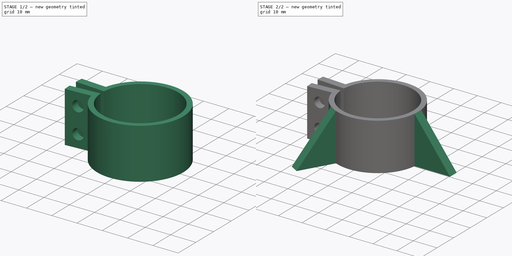
[diagram: build sequence overview — one tinted view per stage of 2, left to right]
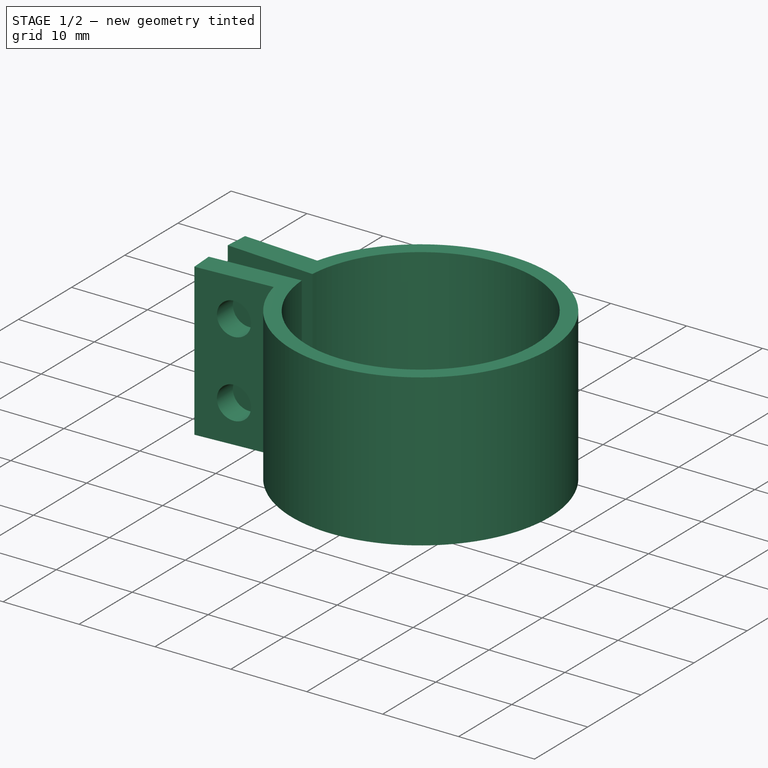
[diagram: stage 1 of 2 — iso view after this stage's code; geometry added in this stage tinted green]
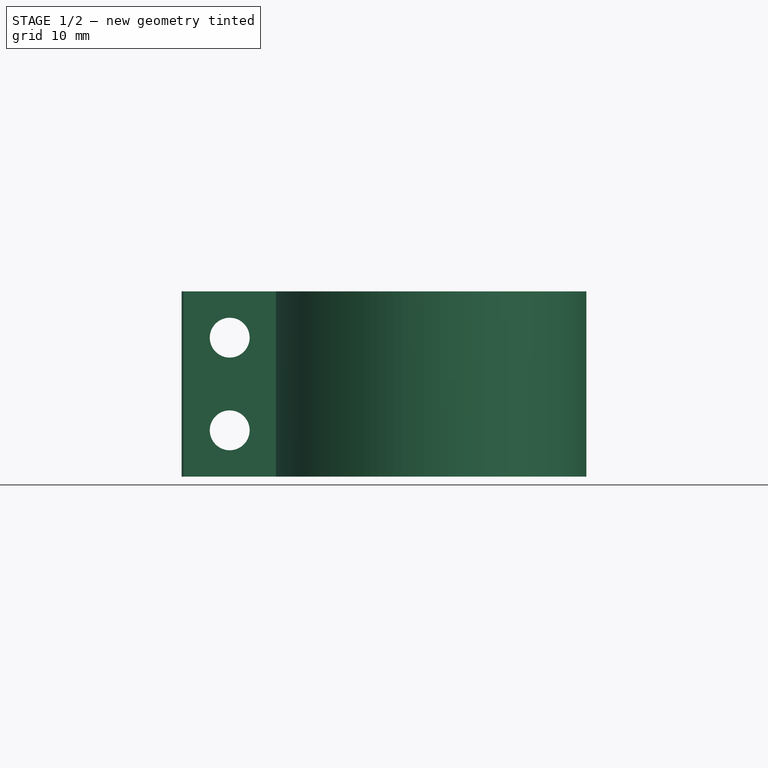
[diagram: stage 1 of 2 — front view after this stage's code; geometry added in this stage tinted green]
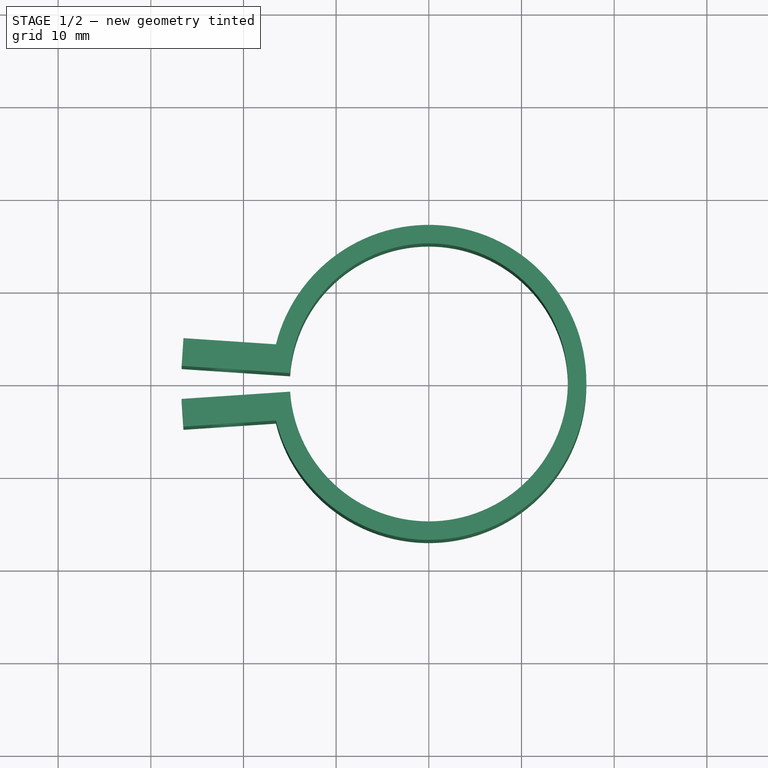
[diagram: stage 1 of 2 — top view after this stage's code; geometry added in this stage tinted green]
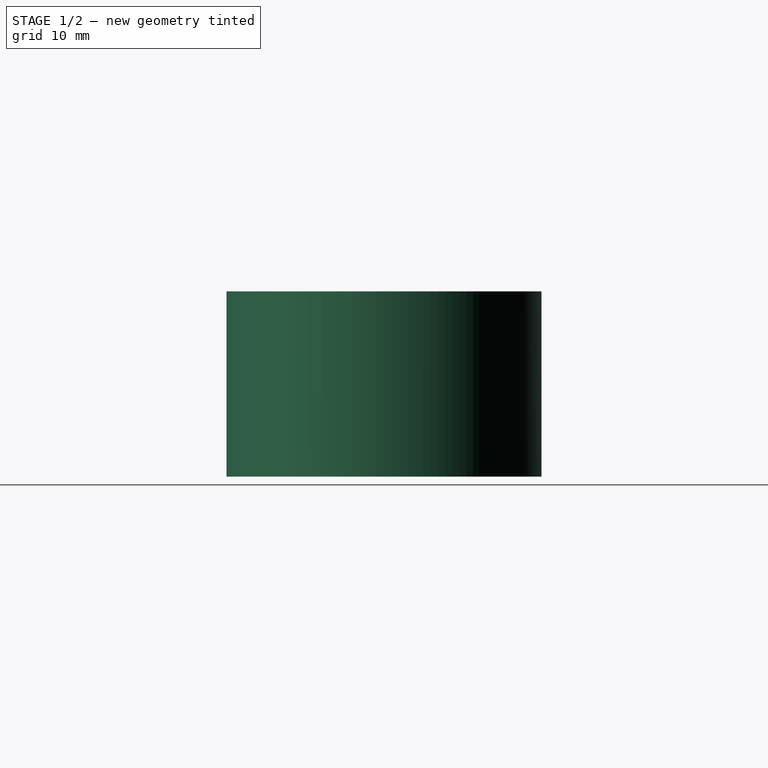
[diagram: stage 1 of 2 — right view after this stage's code; geometry added in this stage tinted green]
FCSTD DOCUMENT  (FreeCAD 0.22R38127 (Git))
Label: collar-lower
License: All rights reserved
LicenseURL: http://en.wikipedia.org/wiki/All_rights_reserved
objects: Sketcher::SketchObject×3, PartDesign::Pad×2, PartDesign::Pocket×1, PartDesign::PolarPattern×1, PartDesign::Body×1
note: 11 computed .brp shape members not serialized (recipe doc carries the construction recipe); baked Part::Feature solids carry a one-line shape summary decoded from their .brp

FEATURE [Sketcher::SketchObject] Sketch
  AttachmentSupport = -> [XY_Plane]
  FullyConstrained = true
  MapMode = 5
  sketch-geometry (8):
    g0: ArcOfCircle CenterX=0 CenterY=0 CenterZ=0 NormalX=0 NormalY=0 NormalZ=1 AngleXU=0 Radius=15 StartAngle=3.20831 EndAngle=9.35806
    g1: LineSegment StartX=-14.9666 StartY=1 StartZ=0 EndX=-26.6737 EndY=1.78221 EndZ=0
    g2: LineSegment StartX=-26.6737 StartY=1.78221 StartZ=0 EndX=-26.4737 EndY=4.77554 EndZ=0
    g3: LineSegment StartX=-26.4737 StartY=4.77554 StartZ=0 EndX=-16.496 EndY=4.10887 EndZ=0
    g4: LineSegment StartX=-14.9666 StartY=-1 StartZ=0 EndX=-26.6737 EndY=-1.78221 EndZ=0
    g5: LineSegment StartX=-26.6737 StartY=-1.78221 StartZ=0 EndX=-26.4737 EndY=-4.77554 EndZ=0
    g6: LineSegment StartX=-26.4737 StartY=-4.77554 StartZ=0 EndX=-16.496 EndY=-4.10887 EndZ=0
    g7: ArcOfCircle CenterX=0 CenterY=0 CenterZ=0 NormalX=0 NormalY=0 NormalZ=1 AngleXU=0 Radius=17 StartAngle=3.38571 EndAngle=9.18066
  constraints (23):
    c: Coincident(g0,g-1)
    c: Diameter(g0) = 30
    c: Coincident(g0,g1)
    c: Coincident(g1,g2)
    c: Coincident(g2,g3)
    c: Coincident(g0,g4)
    c: Coincident(g4,g5)
    c: Coincident(g5,g6)
    c: Coincident(g7,g0)
    c: Coincident(g7,g3)
    c: Coincident(g7,g6)
    c: Symmetric(g4,g1,g-1)
    c: Perpendicular(g0,g1)
    c: Perpendicular(g0,g4)
    c: Perpendicular(g5,g4)
    c: Perpendicular(g6,g5)
    c: Perpendicular(g2,g1)
    c: Perpendicular(g3,g2)
    c: Equal(g5,g2)
    c: Distance(g2,g2) = 3
    c: Diameter(g7) = 34
    c: DistanceY(g0,g0) = 2
    c: Distance(g3,g3) = 10
FEATURE [PartDesign::Pad] Pad
  Direction = (0,0,1)
  Length = 20
  Length2 = 10
  Profile = -> Sketch
  ReferenceAxis = -> Sketch [N_Axis]
  Refine = true
  Suppressed = false
  Type = 0
FEATURE [Sketcher::SketchObject] Sketch001
  AttachmentSupport = -> [XZ_Plane]
  ExternalGeometry = -> [Pad]
  FullyConstrained = true
  MapMode = 5
  Placement = pos=(0,0,0) rot=(1,0,0;1.5708rad)
  sketch-geometry (3):
    g0: Circle CenterX=-21.4849 CenterY=15 CenterZ=0 NormalX=0 NormalY=0 NormalZ=1 AngleXU=0 Radius=2.15
    g1: Circle CenterX=-21.4849 CenterY=5 CenterZ=0 NormalX=0 NormalY=0 NormalZ=1 AngleXU=0 Radius=2.15
    g2: LineSegment StartX=-21.4849 StartY=20 StartZ=0 EndX=-21.4849 EndY=0 EndZ=0
  constraints (9):
    c: Vertical(g2)
    c: Symmetric(g-3,g-4,g2)
    c: PointOnObject(g1,g2)
    c: PointOnObject(g0,g2)
    c: DistanceY(g0,g-4) = 5
    c: DistanceY(g-5,g1) = 5
    c: Diameter(g1) = 4.3
    c: Diameter(g0) = 4.3
    c: PointOnObject(g2,g-1)
FEATURE [PartDesign::Pocket] Pocket
  BaseFeature = -> Pad
  Direction = (0,1,-2e-16)
  Length = 5
  Length2 = 5
  Midplane = true
  Profile = -> Sketch001
  ReferenceAxis = -> Sketch001 [N_Axis]
  Refine = true
  Suppressed = false
  Type = 1
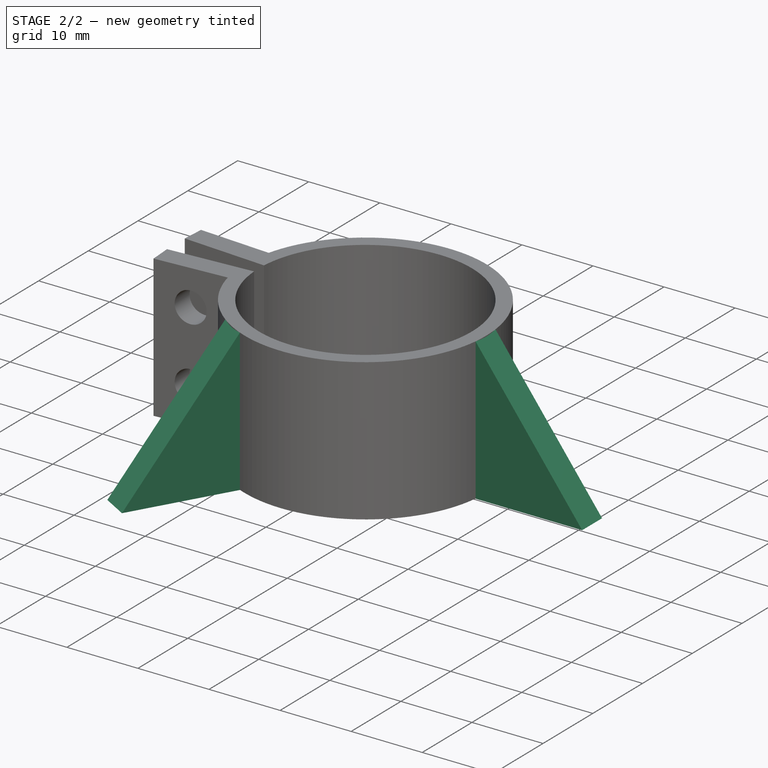
[diagram: stage 2 of 2 — iso view after this stage's code; geometry added in this stage tinted green]
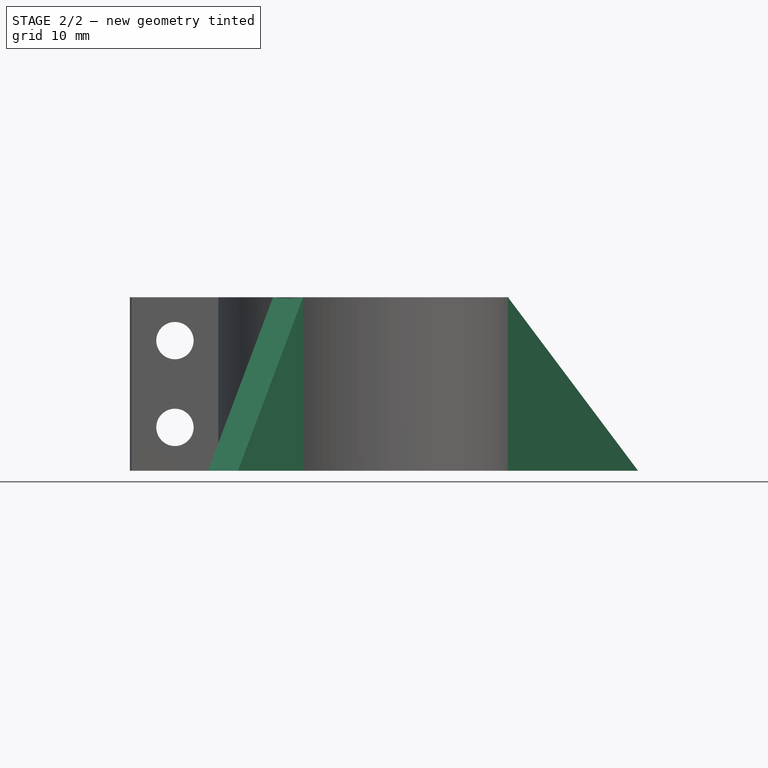
[diagram: stage 2 of 2 — front view after this stage's code; geometry added in this stage tinted green]
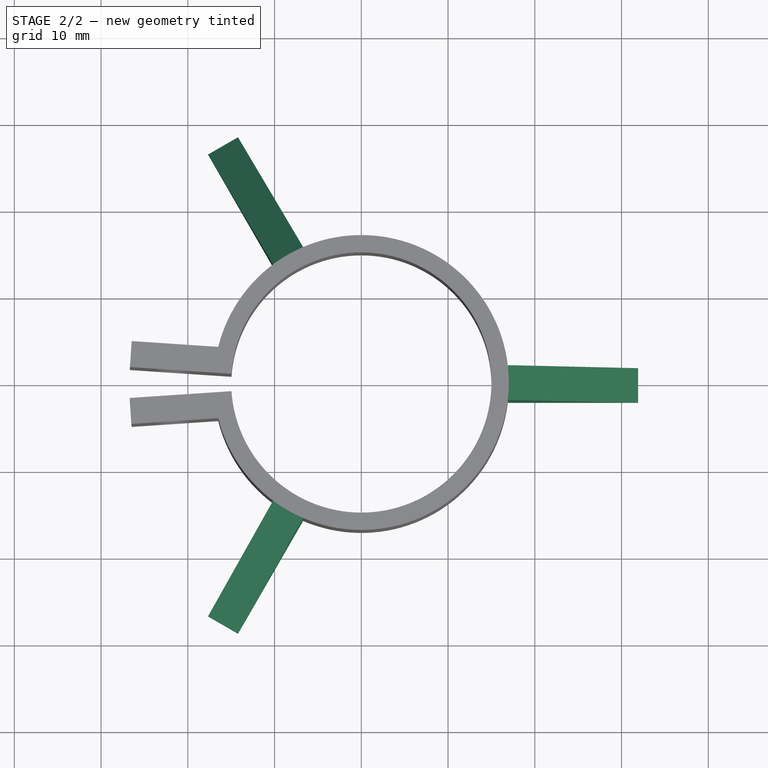
[diagram: stage 2 of 2 — top view after this stage's code; geometry added in this stage tinted green]
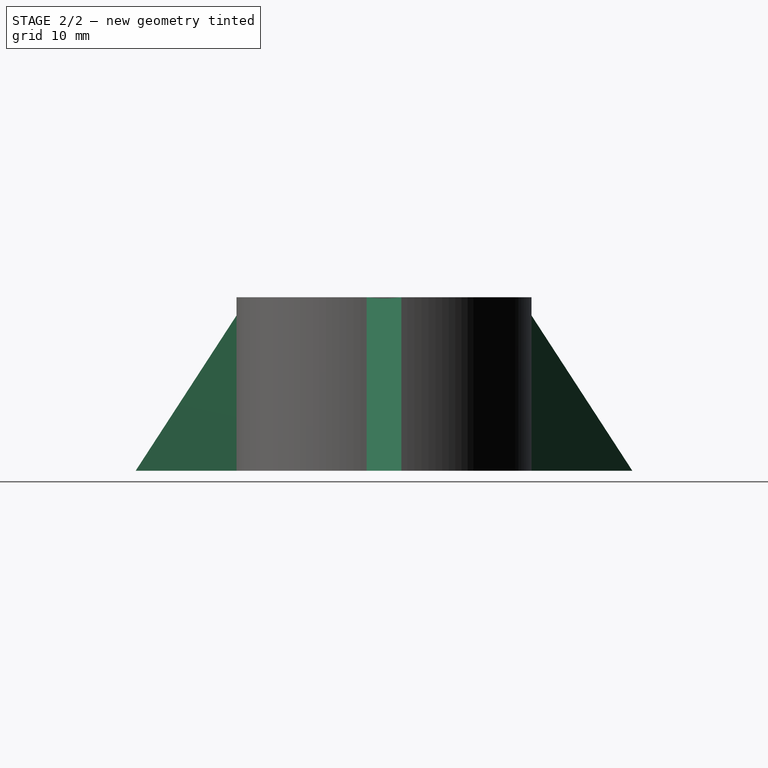
[diagram: stage 2 of 2 — right view after this stage's code; geometry added in this stage tinted green]
FEATURE [Sketcher::SketchObject] Sketch002
  AttachmentSupport = -> [XZ_Plane]
  FullyConstrained = true
  MapMode = 5
  Placement = pos=(0,0,0) rot=(1,0,0;1.5708rad)
  sketch-geometry (3):
    g0: LineSegment StartX=16.9 StartY=20 StartZ=0 EndX=16.9 EndY=0 EndZ=0
    g1: LineSegment StartX=16.9 StartY=0 StartZ=0 EndX=31.9 EndY=0 EndZ=0
    g2: LineSegment StartX=31.9 StartY=0 StartZ=0 EndX=16.9 EndY=20 EndZ=0
  constraints (9):
    c: PointOnObject(g0,g-1)
    c: Vertical(g0)
    c: Coincident(g0,g1)
    c: PointOnObject(g1,g-1)
    c: Coincident(g1,g2)
    c: Coincident(g2,g0)
    c: DistanceX(g-1,g0) = 16.9
    c: DistanceY(g0,g0) = 20
    c: DistanceX(g1,g1) = 15
FEATURE [PartDesign::Pad] Pad001
  BaseFeature = -> Pocket
  Direction = (0,-1,2e-16)
  Length = 4
  Length2 = 10
  Midplane = true
  Profile = -> Sketch002
  ReferenceAxis = -> Sketch002 [N_Axis]
  Refine = true
  Suppressed = false
  Type = 0
FEATURE [PartDesign::PolarPattern] PolarPattern
  Angle = 240
  Axis = -> Sketch002 [V_Axis]
  BaseFeature = -> Pad001
  Mode = 0
  Occurrences = 3
  Offset = 120
  Originals = -> [Pad001]
  Refine = true
  Suppressed = false
  TransformMode = 0
FEATURE [PartDesign::Body] Body
  AllowCompound = false
  Group = -> [Sketch,Pad,Sketch001,Pocket,Sketch002,Pad001,PolarPattern]
  Origin = -> Origin
  Tip = -> PolarPattern
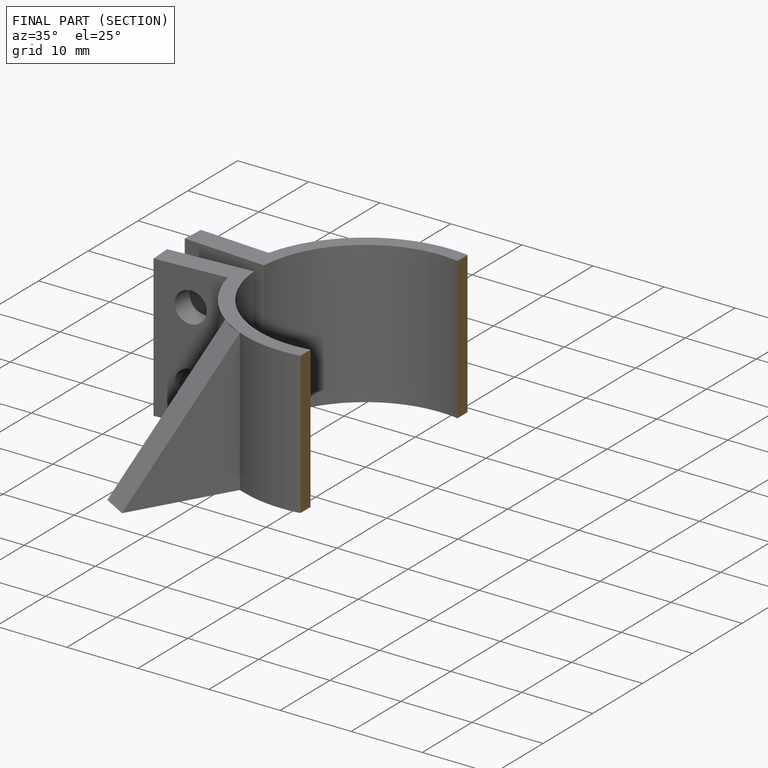
[diagram: finished part — half-section view (interior)]
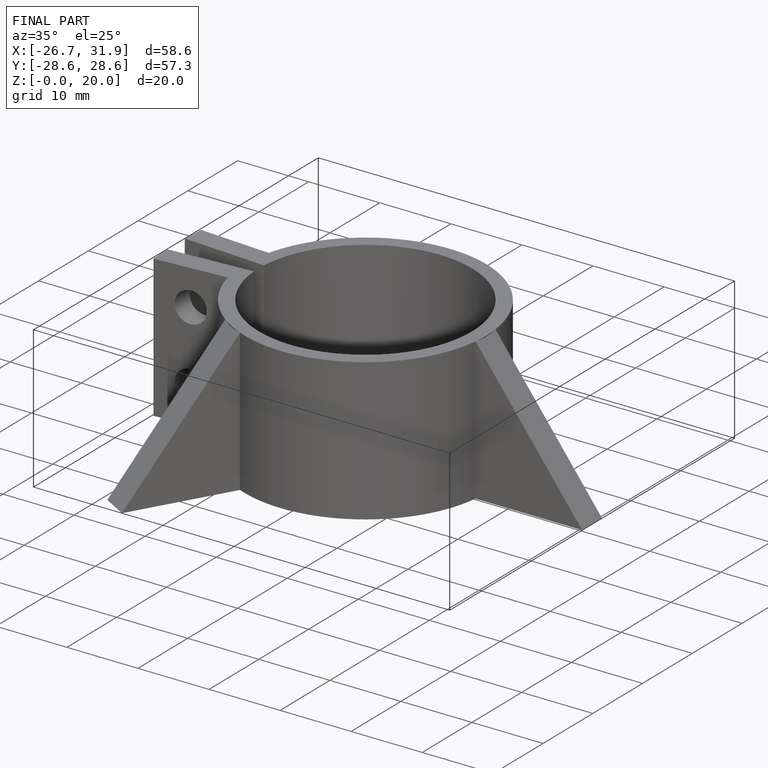
[diagram: finished part — iso view with bounding-box wireframe]
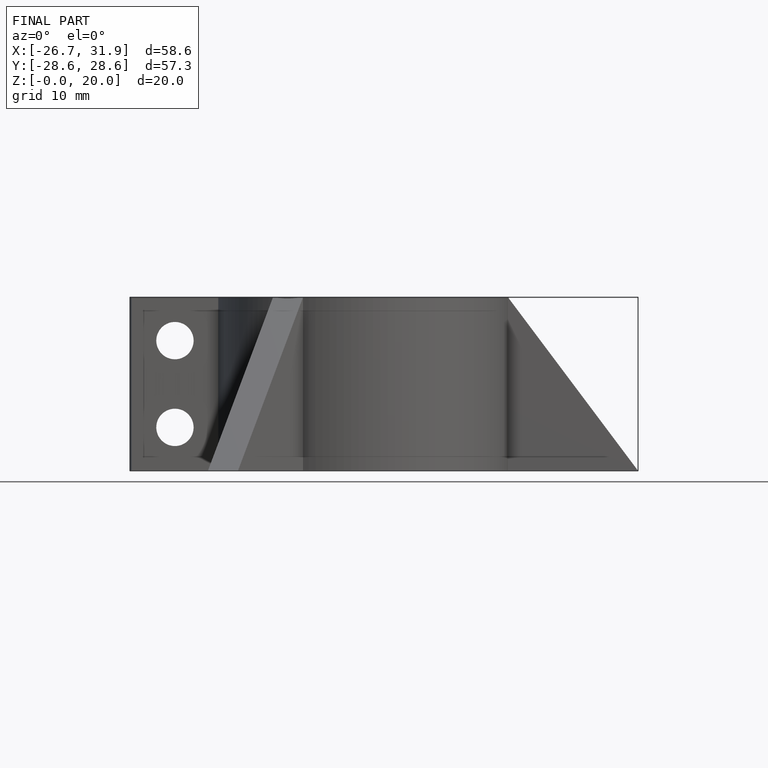
[diagram: finished part — front view with bounding-box wireframe]
